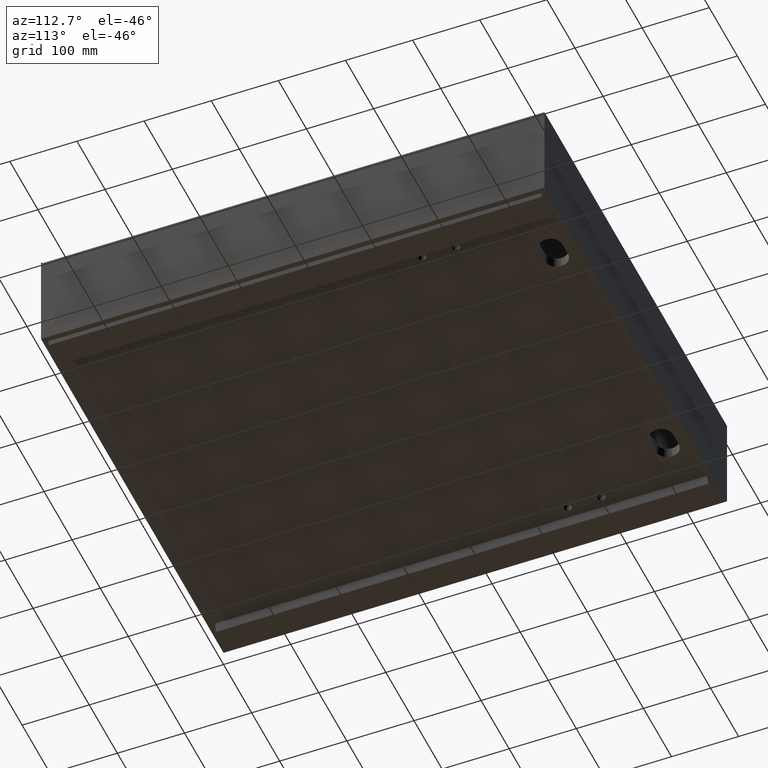
[diagram: clean part render]
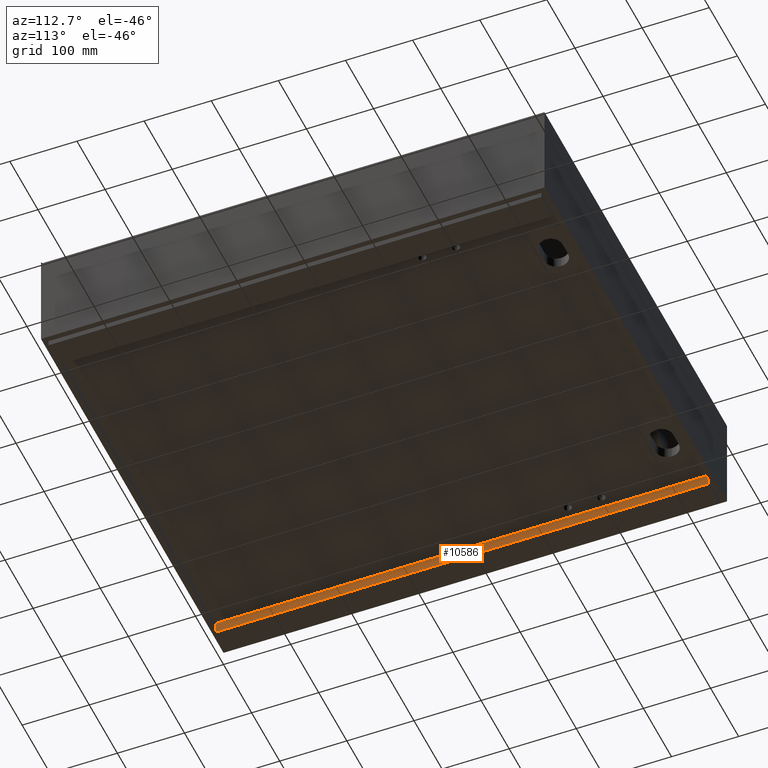
[diagram: same view with one face highlighted and labeled with its STEP entity id]
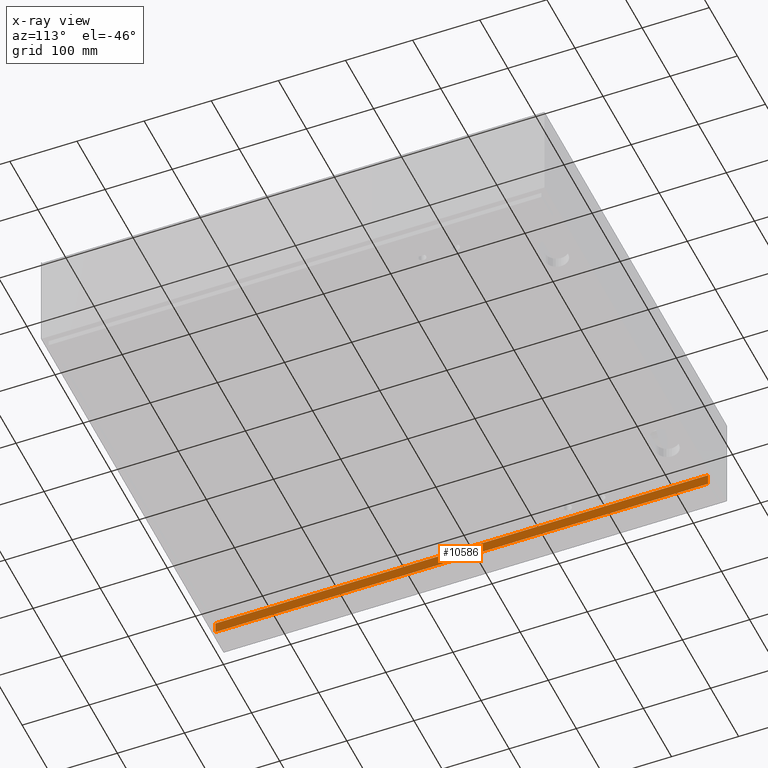
[diagram: x-ray of the same camera — body ghosted, the highlighted face saturated]
A machine part, auxiliary view. The second image highlights one B-rep face of the part: STEP entity #10586.
The next image is the same camera in x-ray: the body ghosted, the highlighted face saturated — about 0% of this face is hidden behind the body in this view.
In plain terms, the highlighted planar face has unit normal (-1, 0, 0).
Its self-contained STEP definition (entity closure, byte-faithful):
#252 = LINE ( 'NONE', #3738, #8248 ) ;
#515 = CARTESIAN_POINT ( 'NONE',  ( 47.99999999999994316, 8.000000000000000000, -158.0000000000002558 ) ) ;
#908 = DIRECTION ( 'NONE',  ( -1.000000000000000000, 1.134424071483470690E-16, 1.423362852083534639E-16 ) ) ;
#1710 = DIRECTION ( 'NONE',  ( -1.134424071483470690E-16, -1.000000000000000000, 0.0000000000000000000 ) ) ;
#1778 = FACE_OUTER_BOUND ( 'NONE', #7056, .T. ) ;
#2152 = VECTOR ( 'NONE', #6445, 1000.000000000000000 ) ;
#2401 = LINE ( 'NONE', #5884, #7437 ) ;
#2957 = CARTESIAN_POINT ( 'NONE',  ( 48.00000000000002842, 742.0000000000000000, -141.0000000000002274 ) ) ;
#3482 = CARTESIAN_POINT ( 'NONE',  ( 48.00000000000002842, 742.0000000000000000, -158.0000000000002558 ) ) ;
#3738 = CARTESIAN_POINT ( 'NONE',  ( 47.99999999999994316, 8.000000000000000000, -158.0000000000002558 ) ) ;
#4405 = DIRECTION ( 'NONE',  ( 1.423362852083534639E-16, 0.0000000000000000000, 1.000000000000000000 ) ) ;
#4428 = AXIS2_PLACEMENT_3D ( 'NONE', #8776, #908, #4405 ) ;
#4447 = CARTESIAN_POINT ( 'NONE',  ( 48.00000000000002842, 742.0000000000000000, -141.0000000000002274 ) ) ;
#5087 = CARTESIAN_POINT ( 'NONE',  ( 47.99999999999994316, 8.000000000000000000, -141.0000000000002274 ) ) ;
#5267 = PLANE ( 'NONE',  #4428 ) ;
#5289 = ORIENTED_EDGE ( 'NONE', *, *, #5788, .T. ) ;
#5788 = EDGE_CURVE ( 'NONE', #11009, #5956, #2401, .T. ) ;
#5884 = CARTESIAN_POINT ( 'NONE',  ( 48.00000000000002842, 742.0000000000000000, -158.0000000000002558 ) ) ;
#5896 = EDGE_CURVE ( 'NONE', #11009, #8406, #6056, .T. ) ;
#5956 = VERTEX_POINT ( 'NONE', #4447 ) ;
#6056 = LINE ( 'NONE', #9568, #6344 ) ;
#6087 = EDGE_CURVE ( 'NONE', #5956, #7761, #10812, .T. ) ;
#6344 = VECTOR ( 'NONE', #1710, 1000.000000000000000 ) ;
#6445 = DIRECTION ( 'NONE',  ( -1.134424071483470690E-16, -1.000000000000000000, 0.0000000000000000000 ) ) ;
#7056 = EDGE_LOOP ( 'NONE', ( #9380, #10568, #8143, #5289 ) ) ;
#7234 = DIRECTION ( 'NONE',  ( 1.423362852083534639E-16, -0.0000000000000000000, 1.000000000000000000 ) ) ;
#7437 = VECTOR ( 'NONE', #9389, 1000.000000000000000 ) ;
#7761 = VERTEX_POINT ( 'NONE', #5087 ) ;
#8143 = ORIENTED_EDGE ( 'NONE', *, *, #5896, .F. ) ;
#8248 = VECTOR ( 'NONE', #7234, 1000.000000000000000 ) ;
#8406 = VERTEX_POINT ( 'NONE', #515 ) ;
#8776 = CARTESIAN_POINT ( 'NONE',  ( 48.00000000000002842, 742.0000000000000000, -158.0000000000002558 ) ) ;
#9325 = EDGE_CURVE ( 'NONE', #8406, #7761, #252, .T. ) ;
#9380 = ORIENTED_EDGE ( 'NONE', *, *, #6087, .T. ) ;
#9389 = DIRECTION ( 'NONE',  ( 1.423362852083534639E-16, -0.0000000000000000000, 1.000000000000000000 ) ) ;
#9568 = CARTESIAN_POINT ( 'NONE',  ( 48.00000000000002842, 742.0000000000000000, -158.0000000000002558 ) ) ;
#10568 = ORIENTED_EDGE ( 'NONE', *, *, #9325, .F. ) ;
#10586 = ADVANCED_FACE ( 'NONE', ( #1778 ), #5267, .F. ) ;
#10812 = LINE ( 'NONE', #2957, #2152 ) ;
#11009 = VERTEX_POINT ( 'NONE', #3482 ) ;